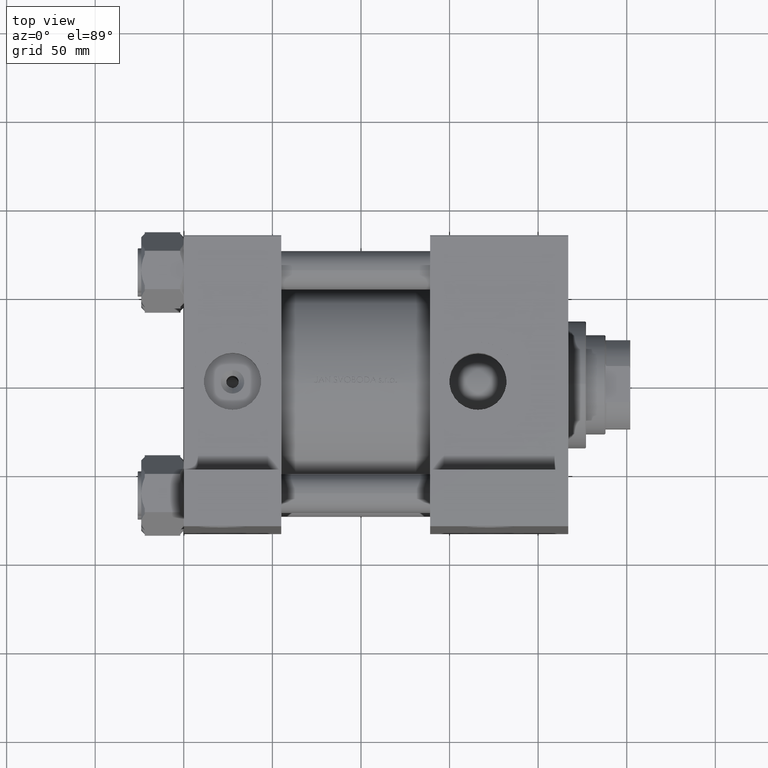
[diagram: clean part render]
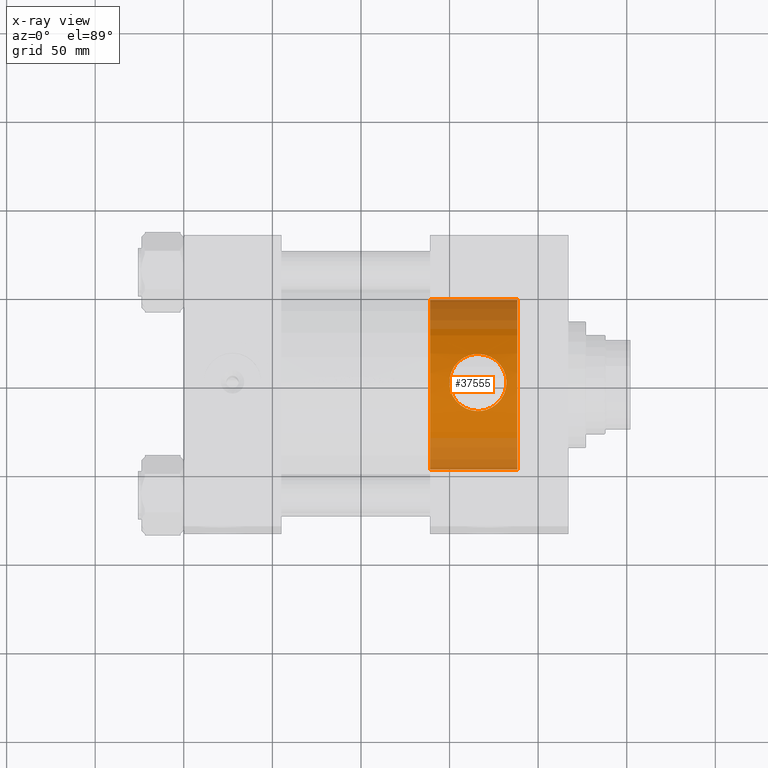
[diagram: x-ray — body ghosted, one internal face saturated and labeled with its STEP entity id]
A machine part, top view, then the same camera in x-ray: the body is ghosted and one INTERNAL B-rep face — a face not visible from any outside direction — is saturated and labeled: STEP entity #37555.
In plain terms, the highlighted cylindrical surface (partial cylindrical patch) has radius 48 mm, axis along (1, 0, 0).
Its self-contained STEP definition (entity closure, byte-faithful):
#714 = CARTESIAN_POINT ( 'NONE',  ( 156.1635998028551455, -46.40338778437211431, -12.78189304560975081 ) ) ;
#853 = CARTESIAN_POINT ( 'NONE',  ( 188.3000000000000114, 0.000000000000000000, -48.50000000000003553 ) ) ;
#1190 = CARTESIAN_POINT ( 'NONE',  ( 163.8723648728259548, -45.42431839608592981, -16.01383603854301541 ) ) ;
#1430 = CARTESIAN_POINT ( 'NONE',  ( 152.9077895486086902, -46.96600063895849786, 9.419201597474943455 ) ) ;
#1681 = CARTESIAN_POINT ( 'NONE',  ( 153.8557602588677753, -46.92030248013472260, -10.65190822079730104 ) ) ;
#1706 = CIRCLE ( 'NONE', #45157, 48.00000000000000711 ) ;
#2124 = VERTEX_POINT ( 'NONE', #18781 ) ;
#2151 = CARTESIAN_POINT ( 'NONE',  ( 158.8517836065694269, -45.61055924918947824, 14.45813960172268864 ) ) ;
#2170 = CARTESIAN_POINT ( 'NONE',  ( 179.6896141644558611, -47.32598518889307115, -8.528106913180822701 ) ) ;
#2418 = CARTESIAN_POINT ( 'NONE',  ( 170.1929864819931879, -45.57187039701980069, -15.57418943153514590 ) ) ;
#2844 = CARTESIAN_POINT ( 'NONE',  ( 166.0000000000000000, -45.03082943939628535, 16.12000000000000099 ) ) ;
#2884 = CARTESIAN_POINT ( 'NONE',  ( 161.7871790535541550, -45.22129200560650730, 15.59609306280430729 ) ) ;
#3143 = DIRECTION ( 'NONE',  ( 0.000000000000000000, 0.000000000000000000, 1.000000000000000000 ) ) ;
#3611 = CARTESIAN_POINT ( 'NONE',  ( 165.9999999999999716, -45.38739472584874335, -16.11999999999996902 ) ) ;
#4103 = ORIENTED_EDGE ( 'NONE', *, *, #25090, .F. ) ;
#5070 = CARTESIAN_POINT ( 'NONE',  ( 152.3253732404412801, -47.14087546972202603, 8.551720074005874750 ) ) ;
#5576 = CARTESIAN_POINT ( 'NONE',  ( 182.0183743627140984, -47.98480064440415305, -2.096750871436129149 ) ) ;
#5811 = CARTESIAN_POINT ( 'NONE',  ( 181.9057297240063065, -47.89787477959392703, 2.672132111805284538 ) ) ;
#5829 = ORIENTED_EDGE ( 'NONE', *, *, #10484, .T. ) ;
#6035 = CARTESIAN_POINT ( 'NONE',  ( 157.9183455142036792, -45.77160193057160598, 13.95785295532299308 ) ) ;
#6053 = CARTESIAN_POINT ( 'NONE',  ( 171.2090954450445679, -45.67317724283205393, -15.26439768651008855 ) ) ;
#6165 = CARTESIAN_POINT ( 'NONE',  ( 188.3000000000000114, 0.000000000000000000, -0.5000000000000281997 ) ) ;
#6279 = CARTESIAN_POINT ( 'NONE',  ( 163.3516611920065316, -45.10796948240928828, 15.90985846403706105 ) ) ;
#6296 = FACE_OUTER_BOUND ( 'NONE', #29448, .T. ) ;
#6301 = CARTESIAN_POINT ( 'NONE',  ( 182.1194012660123178, -47.99147611016886117, 0.5489504295873118833 ) ) ;
#6541 = CARTESIAN_POINT ( 'NONE',  ( 177.7648778190229848, -46.59555815779077648, 11.03260964457131799 ) ) ;
#7263 = VERTEX_POINT ( 'NONE', #12368 ) ;
#7501 = CARTESIAN_POINT ( 'NONE',  ( -27.26450198781713041, 0.000000000000000000, -48.50000000000003553 ) ) ;
#8494 = CARTESIAN_POINT ( 'NONE',  ( 150.7329934650917664, -47.77192257148233523, -5.201375779462839688 ) ) ;
#8733 = CARTESIAN_POINT ( 'NONE',  ( 150.9112936676768584, -47.72027758939619702, -5.697480913578313988 ) ) ;
#8966 = CARTESIAN_POINT ( 'NONE',  ( 154.9630584677174454, -46.66199223001685681, -11.76066105801758788 ) ) ;
#9204 = CARTESIAN_POINT ( 'NONE',  ( 160.2858015298999987, -45.73179139979252739, -15.08247480398956597 ) ) ;
#9224 = CARTESIAN_POINT ( 'NONE',  ( 180.6730391545851546, -47.46009649713887768, 6.696051184183958505 ) ) ;
#9464 = CARTESIAN_POINT ( 'NONE',  ( 166.0000000000000000, -45.03082943939628535, 16.12000000000000099 ) ) ;
#9570 = DIRECTION ( 'NONE',  ( 1.000000000000000000, 0.000000000000000000, 0.000000000000000000 ) ) ;
#9589 = ORIENTED_EDGE ( 'NONE', *, *, #39328, .T. ) ;
#9698 = CARTESIAN_POINT ( 'NONE',  ( 176.6445558198645358, -46.57424501976908005, -12.11721415436172578 ) ) ;
#9944 = CARTESIAN_POINT ( 'NONE',  ( 181.2851388550247975, -47.66712324088017283, 5.228962435838742984 ) ) ;
#10190 = CARTESIAN_POINT ( 'NONE',  ( 172.6775222822670344, -45.53649254816713210, 14.68134972275996475 ) ) ;
#10484 = EDGE_CURVE ( 'NONE', #48029, #13409, #1706, .T. ) ;
#10823 = EDGE_CURVE ( 'NONE', #2124, #26554, #11530, .T. ) ;
#11530 = B_SPLINE_CURVE_WITH_KNOTS ( 'NONE', 3,
 ( #30599, #34971, #1190, #41783, #38866, #30829, #9204, #34018, #23305, #45684, #714, #27200, #8966, #1681, #46162, #11884, #42031, #8733, #8494, #12840, #23068, #31076, #20139, #45445, #34736, #12124, #19657, #26956, #38143, #23544, #45926, #38384, #5070, #1430, #12608, #19899, #27439, #35699, #28398, #39831, #6035, #2151, #43226, #32287, #2884, #6279, #31799, #13324, #25231, #13083 ),
 .UNSPECIFIED., .F., .F.,
 ( 4, 2, 2, 2, 2, 2, 2, 2, 2, 2, 2, 2, 2, 2, 2, 2, 2, 2, 2, 2, 2, 2, 2, 2, 4 ),
 ( 2.797157557069881010E-17, 0.003173181189148500860, 0.004759771783722736328, 0.006346362378296971363, 0.009519543567445439697, 0.01110613416201967560, 0.01269272475659391150, 0.01586590594574238330, 0.01903908713489085511, 0.02062567772946508754, 0.02221226832403932344, 0.02538544951318780912, 0.02697204010776204849, 0.02855863070233629133, 0.03173181189148476661, 0.03331840248605900945, 0.03490499308063324535, 0.03649158367520748125, 0.03807817426978171715, 0.04125135545893025141, 0.04283794605350451506, 0.04442453664807877872, 0.04759771783722731298, 0.04918430843180153500, 0.05077089902637575702 ),
 .UNSPECIFIED. ) ;
#11556 = CARTESIAN_POINT ( 'NONE',  ( 139.0000000000000000, 5.878304635907296578E-15, 47.49999999999997868 ) ) ;
#11884 = CARTESIAN_POINT ( 'NONE',  ( 152.0112390744777997, -47.40610404994097848, -8.080468684933888923 ) ) ;
#12124 = CARTESIAN_POINT ( 'NONE',  ( 150.0141001076143539, -47.93015104236991419, 2.142905952603834763 ) ) ;
#12368 = CARTESIAN_POINT ( 'NONE',  ( 139.0000000000000000, 0.000000000000000000, -48.50000000000003553 ) ) ;
#12608 = CARTESIAN_POINT ( 'NONE',  ( 153.2200095683314487, -46.87517784082815098, 9.838796297862858253 ) ) ;
#12840 = CARTESIAN_POINT ( 'NONE',  ( 150.4240642223295765, -47.86094343566875153, -4.186409342861907135 ) ) ;
#12864 = CARTESIAN_POINT ( 'NONE',  ( 174.5392474220103338, -45.85794220620612549, 13.68244211262726751 ) ) ;
#12885 = VECTOR ( 'NONE', #14061, 1000.000000000000000 ) ;
#13083 = CARTESIAN_POINT ( 'NONE',  ( 166.0000000000000000, -45.03082943939628535, 16.12000000000000099 ) ) ;
#13100 = CARTESIAN_POINT ( 'NONE',  ( 179.9630725952582111, -47.40124968695810281, -8.072453834886369251 ) ) ;
#13324 = CARTESIAN_POINT ( 'NONE',  ( 164.9423890819349765, -45.04043152202940803, 16.09405426134649630 ) ) ;
#13336 = CARTESIAN_POINT ( 'NONE',  ( -27.26450198781713041, 0.000000000000000000, -0.5000000000000281997 ) ) ;
#13341 = CARTESIAN_POINT ( 'NONE',  ( 167.0568715212174311, -45.04042604683520068, 16.09406854934912801 ) ) ;
#13409 = VERTEX_POINT ( 'NONE', #853 ) ;
#14061 = DIRECTION ( 'NONE',  ( 1.000000000000000000, -0.000000000000000000, -0.000000000000000000 ) ) ;
#14062 = CYLINDRICAL_SURFACE ( 'NONE', #44071, 48.00000000000000711 ) ;
#16992 = FACE_BOUND ( 'NONE', #37322, .T. ) ;
#16997 = CARTESIAN_POINT ( 'NONE',  ( 174.0967692588508839, -46.07275512385953675, -13.97843201341746777 ) ) ;
#17241 = CARTESIAN_POINT ( 'NONE',  ( 175.4039386919368724, -46.31684016789377267, -13.10325515185040324 ) ) ;
#17487 = CARTESIAN_POINT ( 'NONE',  ( 173.1551093849531924, -45.61167543545603564, 14.45474307194718477 ) ) ;
#18141 = B_SPLINE_CURVE_WITH_KNOTS ( 'NONE', 3,
 ( #9464, #28659, #13341, #47154, #43494, #46664, #25015, #10190, #17487, #28416, #12864, #36203, #28177, #6541, #21361, #27697, #39604, #21122, #35719, #42519, #9224, #9944, #39121, #5811, #38887, #46910, #6301, #32310, #5576, #35961, #20398, #35226, #31574, #46422, #43243, #13100, #2170, #42997, #20878, #27936, #9698, #24288, #17241, #16997, #24524, #39363, #6053, #2418, #32062, #40086, #21835, #3611 ),
 .UNSPECIFIED., .F., .F.,
 ( 4, 2, 2, 2, 2, 2, 2, 2, 2, 2, 2, 2, 2, 2, 2, 2, 2, 2, 2, 2, 2, 2, 2, 2, 2, 4 ),
 ( 0.05077089902637575702, 0.05235703304984066359, 0.05394316707330557015, 0.05711543512023537633, 0.05870156914370032453, 0.06028770316716526578, 0.06345997121409507891, 0.06504610523755996465, 0.06663223926102483652, 0.06821837328448970839, 0.06980450730795459413, 0.07297677535488435174, 0.07456290937834923749, 0.07614904340181412323, 0.07932131144874389472, 0.08090744547220878047, 0.08249357949567366621, 0.08407971351913856584, 0.08566584754260345158, 0.08883811558953322307, 0.09042424961299809494, 0.09201038363646298068, 0.09518265168339273830, 0.09676878570685759628, 0.09835491973032242652, 0.1015271877772521147 ),
 .UNSPECIFIED. ) ;
#18781 = CARTESIAN_POINT ( 'NONE',  ( 165.9999999999999716, -45.38739472584874335, -16.11999999999996902 ) ) ;
#19657 = CARTESIAN_POINT ( 'NONE',  ( 150.0935674165118883, -47.89814914083600428, 2.668183004106867706 ) ) ;
#19899 = CARTESIAN_POINT ( 'NONE',  ( 153.8873316274531931, -46.68897197374211316, 10.64956961201169960 ) ) ;
#20139 = CARTESIAN_POINT ( 'NONE',  ( 149.8791360199517726, -48.00859610078845208, -1.047316269785325327 ) ) ;
#20398 = CARTESIAN_POINT ( 'NONE',  ( 181.5770306336361841, -47.86125786945344629, -4.182438264016333562 ) ) ;
#20878 = CARTESIAN_POINT ( 'NONE',  ( 178.1421992722099787, -46.91978245111811674, -10.65437306480317226 ) ) ;
#21122 = CARTESIAN_POINT ( 'NONE',  ( 179.6766154421345334, -47.14149058099868483, 8.548479356411775143 ) ) ;
#21361 = CARTESIAN_POINT ( 'NONE',  ( 178.1199778092830286, -46.69096874434502809, 10.64115352746223664 ) ) ;
#21483 = LINE ( 'NONE', #29015, #34828 ) ;
#21835 = CARTESIAN_POINT ( 'NONE',  ( 167.0732760864558770, -45.38739472584871493, -16.11999999999996191 ) ) ;
#21988 = ORIENTED_EDGE ( 'NONE', *, *, #10823, .F. ) ;
#23068 = CARTESIAN_POINT ( 'NONE',  ( 150.2930969800865171, -47.89840553556191338, -3.664781679847131102 ) ) ;
#23305 = CARTESIAN_POINT ( 'NONE',  ( 157.9005969946047685, -46.07316272447462779, -13.97713081961884996 ) ) ;
#23544 = CARTESIAN_POINT ( 'NONE',  ( 151.3288520876386087, -47.45946550802765529, 6.700270783920139195 ) ) ;
#23913 = DIRECTION ( 'NONE',  ( 0.000000000000000000, 0.000000000000000000, -1.000000000000000000 ) ) ;
#24288 = CARTESIAN_POINT ( 'NONE',  ( 175.8284129432173586, -46.40174917997752146, -12.78810957422839856 ) ) ;
#24524 = CARTESIAN_POINT ( 'NONE',  ( 173.1747966783010213, -45.92290709049476760, -14.47382570814952629 ) ) ;
#24646 = DIRECTION ( 'NONE',  ( 1.000000000000000000, -0.000000000000000000, -0.000000000000000000 ) ) ;
#25015 = CARTESIAN_POINT ( 'NONE',  ( 171.2198884957652183, -45.33133019205297387, 15.28773685476055455 ) ) ;
#25090 = EDGE_CURVE ( 'NONE', #7263, #13409, #28898, .T. ) ;
#25231 = CARTESIAN_POINT ( 'NONE',  ( 165.4713033490916985, -45.03082943939629956, 16.12000000000000455 ) ) ;
#25242 = DIRECTION ( 'NONE',  ( 1.000000000000000000, -0.000000000000000000, -0.000000000000000000 ) ) ;
#25925 = EDGE_CURVE ( 'NONE', #26554, #2124, #18141, .T. ) ;
#26554 = VERTEX_POINT ( 'NONE', #2844 ) ;
#26956 = CARTESIAN_POINT ( 'NONE',  ( 150.4070110059867602, -47.77841533959881559, 4.222639759489018374 ) ) ;
#27200 = CARTESIAN_POINT ( 'NONE',  ( 155.3505692288483147, -46.57532569618057039, -12.11285197293546823 ) ) ;
#27407 = VERTEX_POINT ( 'NONE', #11556 ) ;
#27439 = CARTESIAN_POINT ( 'NONE',  ( 154.2436871793678108, -46.59330747440132825, 11.04164547536874430 ) ) ;
#27697 = CARTESIAN_POINT ( 'NONE',  ( 178.7843447212648016, -46.87643641038902587, 9.833033130240300679 ) ) ;
#27936 = CARTESIAN_POINT ( 'NONE',  ( 177.0330829975379743, -46.66111427203347262, -11.76431241985495824 ) ) ;
#28172 = DIRECTION ( 'NONE',  ( 0.000000000000000000, 0.000000000000000000, -1.000000000000000000 ) ) ;
#28177 = CARTESIAN_POINT ( 'NONE',  ( 176.6490169214825983, -46.31017806122162739, 12.14736766835036086 ) ) ;
#28398 = CARTESIAN_POINT ( 'NONE',  ( 156.1613438441227970, -46.12111535019306530, 12.81213201437197391 ) ) ;
#28416 = CARTESIAN_POINT ( 'NONE',  ( 174.0889450942333951, -45.77293390706919496, 13.95364306728276027 ) ) ;
#28659 = CARTESIAN_POINT ( 'NONE',  ( 166.5285445085616516, -45.03082943939629246, 16.12000000000000455 ) ) ;
#28898 = LINE ( 'NONE', #7501, #12885 ) ;
#29015 = CARTESIAN_POINT ( 'NONE',  ( -27.26450198781713041, 5.878304635907296578E-15, 47.49999999999997868 ) ) ;
#29448 = EDGE_LOOP ( 'NONE', ( #30357, #9589, #5829, #4103 ) ) ;
#30357 = ORIENTED_EDGE ( 'NONE', *, *, #38280, .T. ) ;
#30599 = CARTESIAN_POINT ( 'NONE',  ( 165.9999999999999716, -45.38739472584874335, -16.11999999999996902 ) ) ;
#30829 = CARTESIAN_POINT ( 'NONE',  ( 160.7889802795756680, -45.67338552888828929, -15.26375533755113345 ) ) ;
#31076 = CARTESIAN_POINT ( 'NONE',  ( 149.9819159246648894, -47.98472980927021325, -2.099402654837271509 ) ) ;
#31574 = CARTESIAN_POINT ( 'NONE',  ( 181.0892762641857985, -47.72044147175022744, -5.696071188991846057 ) ) ;
#31799 = CARTESIAN_POINT ( 'NONE',  ( 163.8841186496888440, -45.07885937127640830, 15.98937677123724299 ) ) ;
#32062 = CARTESIAN_POINT ( 'NONE',  ( 169.6801611786571300, -45.52884484614769178, -15.70316491821084703 ) ) ;
#32287 = CARTESIAN_POINT ( 'NONE',  ( 160.7819629486697579, -45.33115741601959314, 15.28819847708251345 ) ) ;
#32310 = CARTESIAN_POINT ( 'NONE',  ( 182.1211677435359491, -48.00866652693201075, -1.044282327833024659 ) ) ;
#34018 = CARTESIAN_POINT ( 'NONE',  ( 158.8239021298000182, -45.92310508479646103, -14.47317728876450538 ) ) ;
#34736 = CARTESIAN_POINT ( 'NONE',  ( 149.9071422432997167, -47.97703489054018178, 1.077483416898991742 ) ) ;
#34799 = AXIS2_PLACEMENT_3D ( 'NONE', #37272, #41863, #3143 ) ;
#34828 = VECTOR ( 'NONE', #24646, 1000.000000000000000 ) ;
#34971 = CARTESIAN_POINT ( 'NONE',  ( 164.9264149693778165, -45.38739472584873624, -16.11999999999996902 ) ) ;
#35226 = CARTESIAN_POINT ( 'NONE',  ( 181.2678293801394034, -47.77216073477619318, -5.199044067181972650 ) ) ;
#35699 = CARTESIAN_POINT ( 'NONE',  ( 155.3562305705511051, -46.30895824646513859, 12.15163676604532306 ) ) ;
#35719 = CARTESIAN_POINT ( 'NONE',  ( 179.9464770105403488, -47.22545125689033085, 8.100984158973147942 ) ) ;
#35961 = CARTESIAN_POINT ( 'NONE',  ( 181.7077857973283699, -47.89865524805605190, -3.660933720443237060 ) ) ;
#36203 = CARTESIAN_POINT ( 'NONE',  ( 175.8427483824774242, -46.12203584202174511, 12.80894137226269613 ) ) ;
#37272 = CARTESIAN_POINT ( 'NONE',  ( 139.0000000000000000, 0.000000000000000000, -0.5000000000000281997 ) ) ;
#37322 = EDGE_LOOP ( 'NONE', ( #21988, #41858 ) ) ;
#37555 = ADVANCED_FACE ( 'NONE', ( #16992, #6296 ), #14062, .F. ) ;
#38143 = CARTESIAN_POINT ( 'NONE',  ( 150.7152976474805541, -47.66695834608157867, 5.230632138838013923 ) ) ;
#38280 = EDGE_CURVE ( 'NONE', #7263, #27407, #45666, .T. ) ;
#38317 = CARTESIAN_POINT ( 'NONE',  ( 188.3000000000000114, 5.878304635907296578E-15, 47.49999999999997868 ) ) ;
#38384 = CARTESIAN_POINT ( 'NONE',  ( 152.0551778058342336, -47.22493191821467917, 8.103833555976988734 ) ) ;
#38866 = CARTESIAN_POINT ( 'NONE',  ( 161.8058529067881466, -45.57196972631352594, -15.57389109027587359 ) ) ;
#38887 = CARTESIAN_POINT ( 'NONE',  ( 181.9851507030307403, -47.92984643928785005, 2.148144623875227310 ) ) ;
#39121 = CARTESIAN_POINT ( 'NONE',  ( 181.5927292235676589, -47.77832790090997861, 4.222997473929688717 ) ) ;
#39328 = EDGE_CURVE ( 'NONE', #27407, #48029, #21483, .T. ) ;
#39363 = CARTESIAN_POINT ( 'NONE',  ( 171.7127774399910152, -45.73161931992407148, -15.08301390380388973 ) ) ;
#39604 = CARTESIAN_POINT ( 'NONE',  ( 179.0955494772985901, -46.96698537603342771, 9.414504402604331190 ) ) ;
#39831 = CARTESIAN_POINT ( 'NONE',  ( 157.4658752347383484, -45.85695041314296105, 13.68564886725383367 ) ) ;
#40086 = CARTESIAN_POINT ( 'NONE',  ( 168.1275284828745953, -45.42432433454918339, -16.01381658294650023 ) ) ;
#41783 = CARTESIAN_POINT ( 'NONE',  ( 162.3189938691545251, -45.52890829132404349, -15.70297544545644719 ) ) ;
#41858 = ORIENTED_EDGE ( 'NONE', *, *, #25925, .F. ) ;
#41863 = DIRECTION ( 'NONE',  ( -1.000000000000000000, -0.000000000000000000, 0.000000000000000000 ) ) ;
#42031 = CARTESIAN_POINT ( 'NONE',  ( 151.5157176904367020, -47.54675522615939087, -7.152884463737964715 ) ) ;
#42519 = CARTESIAN_POINT ( 'NONE',  ( 180.4441519087992276, -47.38456940740427825, 7.176116009722412592 ) ) ;
#42997 = CARTESIAN_POINT ( 'NONE',  ( 178.8069137629852037, -47.08967833537967351, -9.846640739090346983 ) ) ;
#43226 = CARTESIAN_POINT ( 'NONE',  ( 159.3275977453172345, -45.53572826845245203, 14.68363303095099681 ) ) ;
#43243 = CARTESIAN_POINT ( 'NONE',  ( 180.4603218019358053, -47.54033158214807742, -7.143598575037801268 ) ) ;
#43494 = CARTESIAN_POINT ( 'NONE',  ( 168.6439544732413935, -45.10768884431485759, 15.91063097145572058 ) ) ;
#44071 = AXIS2_PLACEMENT_3D ( 'NONE', #13336, #25242, #28172 ) ;
#45157 = AXIS2_PLACEMENT_3D ( 'NONE', #6165, #9570, #23913 ) ;
#45445 = CARTESIAN_POINT ( 'NONE',  ( 149.8804401148714192, -47.99158637267947825, 0.5434802828031642941 ) ) ;
#45666 = CIRCLE ( 'NONE', #34799, 48.00000000000000711 ) ;
#45684 = CARTESIAN_POINT ( 'NONE',  ( 156.5900218046653265, -46.31801036402595173, -13.09897855221780105 ) ) ;
#45926 = CARTESIAN_POINT ( 'NONE',  ( 151.5572978694974040, -47.38409619609002732, 7.179034719198218006 ) ) ;
#46162 = CARTESIAN_POINT ( 'NONE',  ( 153.1906150050031101, -47.09030554549215708, -9.843732140279016107 ) ) ;
#46422 = CARTESIAN_POINT ( 'NONE',  ( 180.6855236353206067, -47.60452876052514881, -6.668349175277240803 ) ) ;
#46664 = CARTESIAN_POINT ( 'NONE',  ( 170.2123049357632283, -45.22118107743296633, 15.59640919551103089 ) ) ;
#46910 = CARTESIAN_POINT ( 'NONE',  ( 182.0922727514308406, -47.97675495865460249, 1.085507262639671566 ) ) ;
#47154 = CARTESIAN_POINT ( 'NONE',  ( 168.1130860952204955, -45.07873656782047078, 15.98971191227957078 ) ) ;
#48029 = VERTEX_POINT ( 'NONE', #38317 ) ;